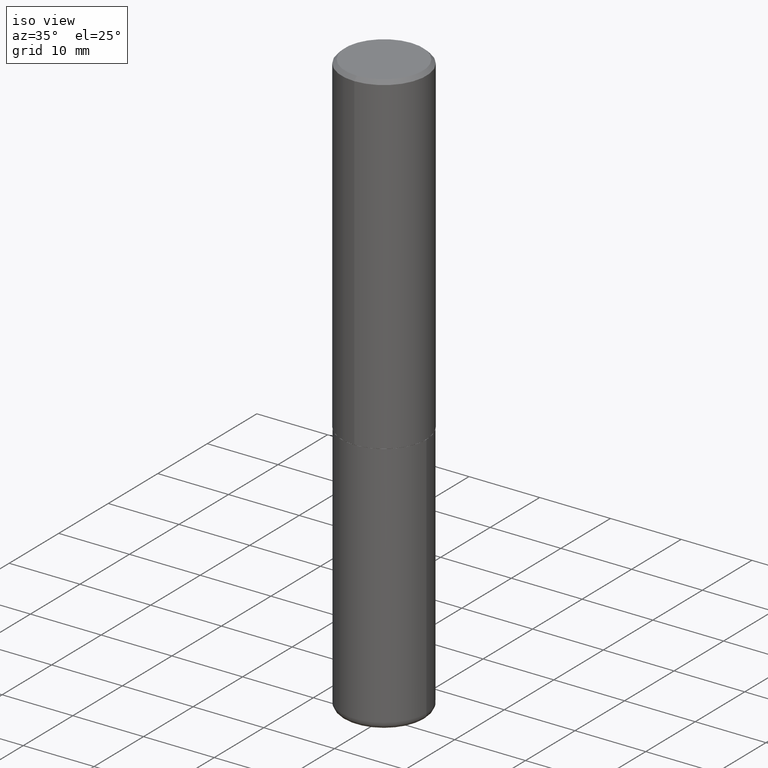
[diagram: clean part render]
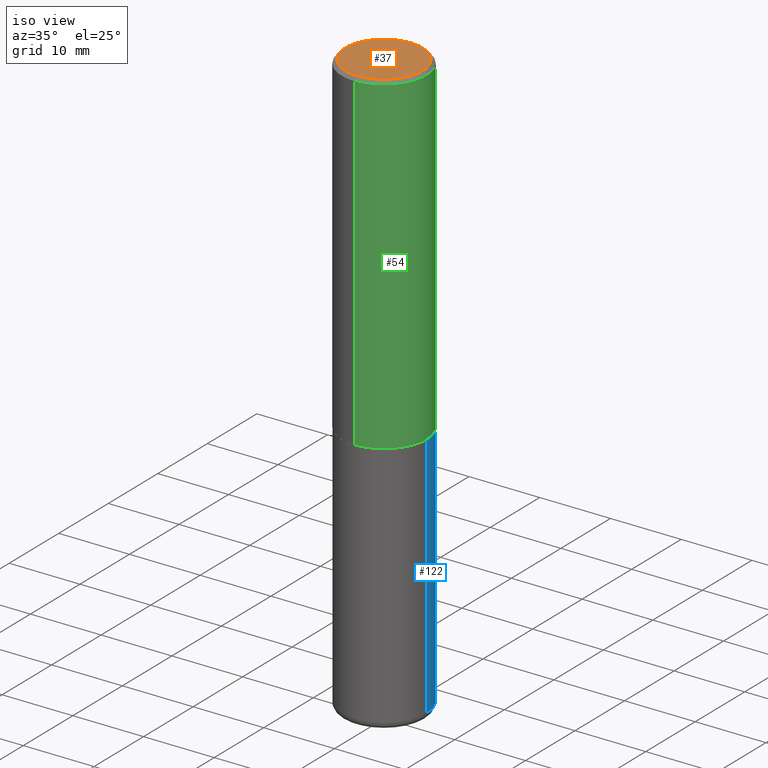
[diagram: same view with three faces highlighted in distinct colors, each labeled with its STEP entity id]
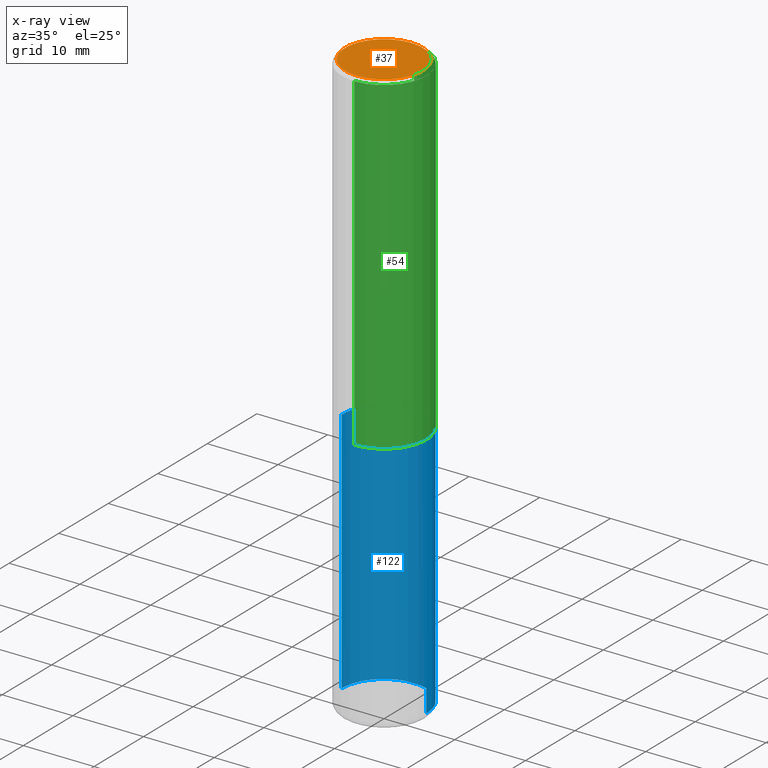
[diagram: x-ray of the same camera — body ghosted, the three highlighted faces saturated]
A machine part, iso view with three faces highlighted in distinct colors.
The next image is the same camera in x-ray (body ghosted, the three faces saturated) — at least one of them is partly hidden behind the body in this view.
Their STEP definitions:

[orange] entity #37 — the highlighted planar face has unit normal (0, -0, -1).
#8 = FACE_OUTER_BOUND ( 'NONE', #40, .T. ) ;
#12 = DIRECTION ( 'NONE',  ( 6.982962677686265922E-15, 1.000000000000000000, -3.491620077334691546E-15 ) ) ;
#18 = PLANE ( 'NONE',  #166 ) ;
#24 = CARTESIAN_POINT ( 'NONE',  ( 1.579546157692632438E-15, 0.2161999999999996425, -4.261828037201549199E-16 ) ) ;
#37 = ADVANCED_FACE ( 'NONE', ( #8 ), #18, .F. ) ;
#40 = EDGE_LOOP ( 'NONE', ( #49, #302 ) ) ;
#49 = ORIENTED_EDGE ( 'NONE', *, *, #120, .T. ) ;
#69 = DIRECTION ( 'NONE',  ( -2.445371925614294233E-29, 3.491620077334691546E-15, 1.000000000000000000 ) ) ;
#88 = CIRCLE ( 'NONE', #176, 0.2161999999999996425 ) ;
#91 = CARTESIAN_POINT ( 'NONE',  ( -1.551844647095918761E-15, -0.2161999999999996425, 1.083593717719362934E-15 ) ) ;
#105 = AXIS2_PLACEMENT_3D ( 'NONE', #412, #121, #344 ) ;
#120 = EDGE_CURVE ( 'NONE', #283, #222, #285, .T. ) ;
#121 = DIRECTION ( 'NONE',  ( -2.445371925614294233E-29, 3.491620077334691546E-15, 1.000000000000000000 ) ) ;
#135 = DIRECTION ( 'NONE',  ( 2.445371925614293953E-29, -3.491620077334691546E-15, -1.000000000000000000 ) ) ;
#166 = AXIS2_PLACEMENT_3D ( 'NONE', #175, #135, #12 ) ;
#175 = CARTESIAN_POINT ( 'NONE',  ( 1.509716530915768154E-15, 0.2161999999999996425, -5.905355322199570835E-16 ) ) ;
#176 = AXIS2_PLACEMENT_3D ( 'NONE', #386, #69, #202 ) ;
#202 = DIRECTION ( 'NONE',  ( -6.982962677686265922E-15, -1.000000000000000000, 3.491620077334691152E-15 ) ) ;
#222 = VERTEX_POINT ( 'NONE', #91 ) ;
#283 = VERTEX_POINT ( 'NONE', #24 ) ;
#285 = CIRCLE ( 'NONE', #105, 0.2161999999999996425 ) ;
#302 = ORIENTED_EDGE ( 'NONE', *, *, #383, .T. ) ;
#344 = DIRECTION ( 'NONE',  ( -6.982962677686265922E-15, -1.000000000000000000, 3.491620077334691152E-15 ) ) ;
#383 = EDGE_CURVE ( 'NONE', #222, #283, #88, .T. ) ;
#386 = CARTESIAN_POINT ( 'NONE',  ( -8.038070963430480451E-45, 1.147714573189292330E-30, 3.287054569996039822E-16 ) ) ;
#412 = CARTESIAN_POINT ( 'NONE',  ( -8.038070963430480451E-45, 1.147714573189292330E-30, 3.287054569996039822E-16 ) ) ;

[blue] entity #122 — the highlighted cylindrical surface (partial cylindrical patch) has radius 5.9995 mm, axis along (-0, 0, 1).
#19 = LINE ( 'NONE', #145, #381 ) ;
#25 = DIRECTION ( 'NONE',  ( 1.000000000000000000, -6.982962677686266711E-15, 4.876176775795936353E-29 ) ) ;
#55 = CYLINDRICAL_SURFACE ( 'NONE', #117, 0.2361999999999999933 ) ;
#56 = DIRECTION ( 'NONE',  ( 1.000000000000000000, -6.982962677686269077E-15, 0.000000000000000000 ) ) ;
#58 = CARTESIAN_POINT ( 'NONE',  ( 7.894706947007477118E-29, -1.127154920618732880E-14, -3.228299999999999947 ) ) ;
#60 = ORIENTED_EDGE ( 'NONE', *, *, #288, .F. ) ;
#62 = DIRECTION ( 'NONE',  ( -2.445468806185136597E-29, 3.491481338843145583E-15, 1.000000000000000000 ) ) ;
#64 = CARTESIAN_POINT ( 'NONE',  ( 0.000000000000000000, 0.000000000000000000, 0.000000000000000000 ) ) ;
#81 = ORIENTED_EDGE ( 'NONE', *, *, #220, .F. ) ;
#87 = CARTESIAN_POINT ( 'NONE',  ( -0.2361999999999999933, -7.187791195925986796E-15, -1.850400000000000267 ) ) ;
#89 = DIRECTION ( 'NONE',  ( -2.445468806185136877E-29, 3.491481338843145188E-15, 1.000000000000000000 ) ) ;
#92 = EDGE_CURVE ( 'NONE', #265, #182, #178, .T. ) ;
#116 = CARTESIAN_POINT ( 'NONE',  ( 0.2362000000000000210, -1.292092499065682375E-14, -3.228299999999999947 ) ) ;
#117 = AXIS2_PLACEMENT_3D ( 'NONE', #64, #156, #25 ) ;
#122 = ADVANCED_FACE ( 'NONE', ( #218 ), #55, .T. ) ;
#124 = DIRECTION ( 'NONE',  ( -2.445468806185136597E-29, 3.491481338843145583E-15, 1.000000000000000000 ) ) ;
#128 = DIRECTION ( 'NONE',  ( 1.000000000000000000, -6.982962677686265133E-15, 0.000000000000000000 ) ) ;
#136 = VERTEX_POINT ( 'NONE', #251 ) ;
#145 = CARTESIAN_POINT ( 'NONE',  ( 0.2361999999999999933, -1.649375784469496131E-15, 1.151752954443000088E-29 ) ) ;
#146 = CARTESIAN_POINT ( 'NONE',  ( -0.2361999999999999933, 1.678301941865356591E-15, -1.161852468318208757E-29 ) ) ;
#156 = DIRECTION ( 'NONE',  ( -2.445468806185136597E-29, 3.491481338843145583E-15, 1.000000000000000000 ) ) ;
#161 = AXIS2_PLACEMENT_3D ( 'NONE', #343, #62, #56 ) ;
#169 = VERTEX_POINT ( 'NONE', #116 ) ;
#178 = LINE ( 'NONE', #146, #305 ) ;
#182 = VERTEX_POINT ( 'NONE', #87 ) ;
#213 = DIRECTION ( 'NONE',  ( -2.445468806185136877E-29, 3.491481338843145188E-15, 1.000000000000000000 ) ) ;
#218 = FACE_OUTER_BOUND ( 'NONE', #334, .T. ) ;
#219 = AXIS2_PLACEMENT_3D ( 'NONE', #58, #124, #128 ) ;
#220 = EDGE_CURVE ( 'NONE', #169, #136, #19, .T. ) ;
#251 = CARTESIAN_POINT ( 'NONE',  ( 0.2361999999999999933, -8.110012853864854101E-15, -1.850400000000000267 ) ) ;
#265 = VERTEX_POINT ( 'NONE', #338 ) ;
#278 = ORIENTED_EDGE ( 'NONE', *, *, #356, .T. ) ;
#288 = EDGE_CURVE ( 'NONE', #136, #182, #306, .T. ) ;
#290 = CIRCLE ( 'NONE', #219, 0.2361999999999999933 ) ;
#305 = VECTOR ( 'NONE', #89, 39.37007874015748143 ) ;
#306 = CIRCLE ( 'NONE', #161, 0.2361999999999999933 ) ;
#334 = EDGE_LOOP ( 'NONE', ( #278, #335, #60, #81 ) ) ;
#335 = ORIENTED_EDGE ( 'NONE', *, *, #92, .T. ) ;
#338 = CARTESIAN_POINT ( 'NONE',  ( -0.2362000000000000210, -9.593247264321970832E-15, -3.228299999999999947 ) ) ;
#343 = CARTESIAN_POINT ( 'NONE',  ( 4.525095478964977394E-29, -6.460637069395357576E-15, -1.850400000000000267 ) ) ;
#356 = EDGE_CURVE ( 'NONE', #169, #265, #290, .T. ) ;
#381 = VECTOR ( 'NONE', #213, 39.37007874015748143 ) ;

[green] entity #54 — the highlighted cylindrical surface (partial cylindrical patch) has radius 5.9995 mm, axis along (-0, 0, 1).
#22 = AXIS2_PLACEMENT_3D ( 'NONE', #125, #254, #352 ) ;
#28 = EDGE_CURVE ( 'NONE', #48, #158, #82, .T. ) ;
#38 = VERTEX_POINT ( 'NONE', #150 ) ;
#47 = LINE ( 'NONE', #304, #184 ) ;
#48 = VERTEX_POINT ( 'NONE', #274 ) ;
#54 = ADVANCED_FACE ( 'NONE', ( #243 ), #142, .T. ) ;
#70 = ORIENTED_EDGE ( 'NONE', *, *, #320, .F. ) ;
#78 = ORIENTED_EDGE ( 'NONE', *, *, #364, .T. ) ;
#82 = LINE ( 'NONE', #291, #174 ) ;
#111 = DIRECTION ( 'NONE',  ( -2.445371925614294233E-29, 3.491620077334691546E-15, 1.000000000000000000 ) ) ;
#118 = DIRECTION ( 'NONE',  ( -6.982962677686265922E-15, -1.000000000000000000, 3.491620077334691941E-15 ) ) ;
#125 = CARTESIAN_POINT ( 'NONE',  ( 4.522470839231075964E-29, -6.457402171022779437E-15, -1.849400000000000155 ) ) ;
#137 = VERTEX_POINT ( 'NONE', #223 ) ;
#142 = CYLINDRICAL_SURFACE ( 'NONE', #262, 0.2362000000000001043 ) ;
#150 = CARTESIAN_POINT ( 'NONE',  ( 1.678301941865380454E-15, 0.2361999999999937760, -1.849400000000001043 ) ) ;
#154 = CARTESIAN_POINT ( 'NONE',  ( -1.620449627073635079E-15, -0.2362000000000000766, -0.01999999999999922673 ) ) ;
#158 = VERTEX_POINT ( 'NONE', #154 ) ;
#174 = VECTOR ( 'NONE', #326, 39.37007874015748143 ) ;
#181 = EDGE_CURVE ( 'NONE', #38, #137, #47, .T. ) ;
#184 = VECTOR ( 'NONE', #111, 39.37007874015748143 ) ;
#194 = CIRCLE ( 'NONE', #22, 0.2362000000000002153 ) ;
#223 = CARTESIAN_POINT ( 'NONE',  ( 1.649375784469496525E-15, 0.2361999999999999378, -0.02000000000000087472 ) ) ;
#225 = CARTESIAN_POINT ( 'NONE',  ( 4.890743851228601113E-31, -6.983240154669400497E-17, -0.02000000000000005246 ) ) ;
#240 = DIRECTION ( 'NONE',  ( -2.445371925614294233E-29, 3.491620077334691546E-15, 1.000000000000000000 ) ) ;
#243 = FACE_OUTER_BOUND ( 'NONE', #293, .T. ) ;
#254 = DIRECTION ( 'NONE',  ( -2.445371925614294233E-29, 3.491620077334691546E-15, 1.000000000000000000 ) ) ;
#262 = AXIS2_PLACEMENT_3D ( 'NONE', #410, #240, #118 ) ;
#274 = CARTESIAN_POINT ( 'NONE',  ( -1.649375784469452349E-15, -0.2362000000000066546, -1.849399999999999489 ) ) ;
#291 = CARTESIAN_POINT ( 'NONE',  ( -1.649375784469496722E-15, -0.2362000000000001043, 8.247206622664545710E-16 ) ) ;
#293 = EDGE_LOOP ( 'NONE', ( #78, #394, #70, #362 ) ) ;
#304 = CARTESIAN_POINT ( 'NONE',  ( 1.678301941865357183E-15, 0.2362000000000001043, -8.247206622664545710E-16 ) ) ;
#320 = EDGE_CURVE ( 'NONE', #158, #137, #354, .T. ) ;
#326 = DIRECTION ( 'NONE',  ( -2.445371925614294233E-29, 3.491620077334691546E-15, 1.000000000000000000 ) ) ;
#352 = DIRECTION ( 'NONE',  ( -6.982962677686265133E-15, -1.000000000000000000, 3.469747663417773847E-15 ) ) ;
#354 = CIRCLE ( 'NONE', #393, 0.2361999999999999933 ) ;
#362 = ORIENTED_EDGE ( 'NONE', *, *, #28, .F. ) ;
#364 = EDGE_CURVE ( 'NONE', #48, #38, #194, .T. ) ;
#382 = DIRECTION ( 'NONE',  ( -2.445371925614294233E-29, 3.491620077334691546E-15, 1.000000000000000000 ) ) ;
#393 = AXIS2_PLACEMENT_3D ( 'NONE', #225, #382, #417 ) ;
#394 = ORIENTED_EDGE ( 'NONE', *, *, #181, .T. ) ;
#410 = CARTESIAN_POINT ( 'NONE',  ( 0.000000000000000000, 0.000000000000000000, 0.000000000000000000 ) ) ;
#417 = DIRECTION ( 'NONE',  ( -6.982962677686265922E-15, -1.000000000000000000, 3.487819265831411744E-15 ) ) ;